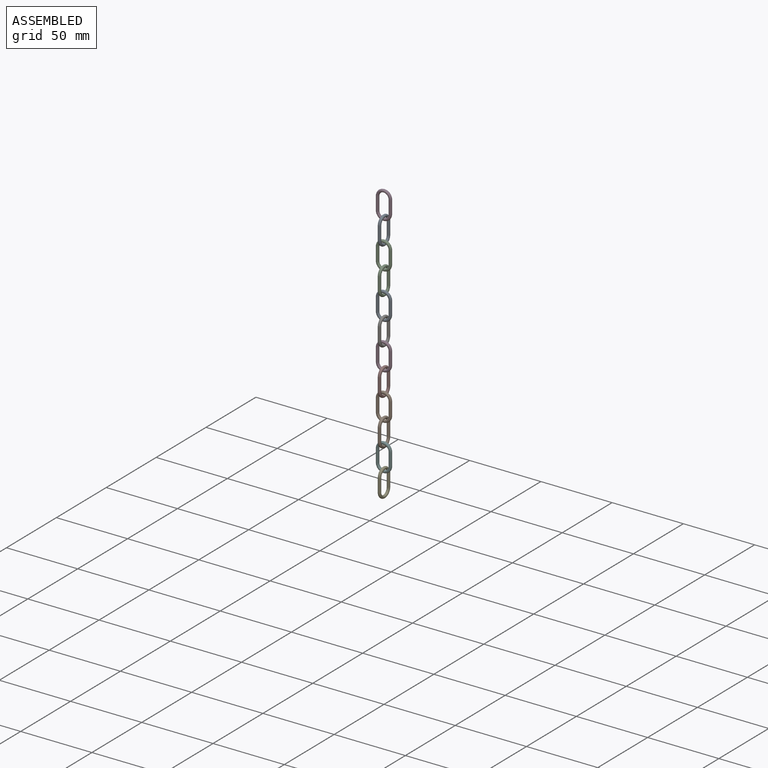
[diagram: assembled view]
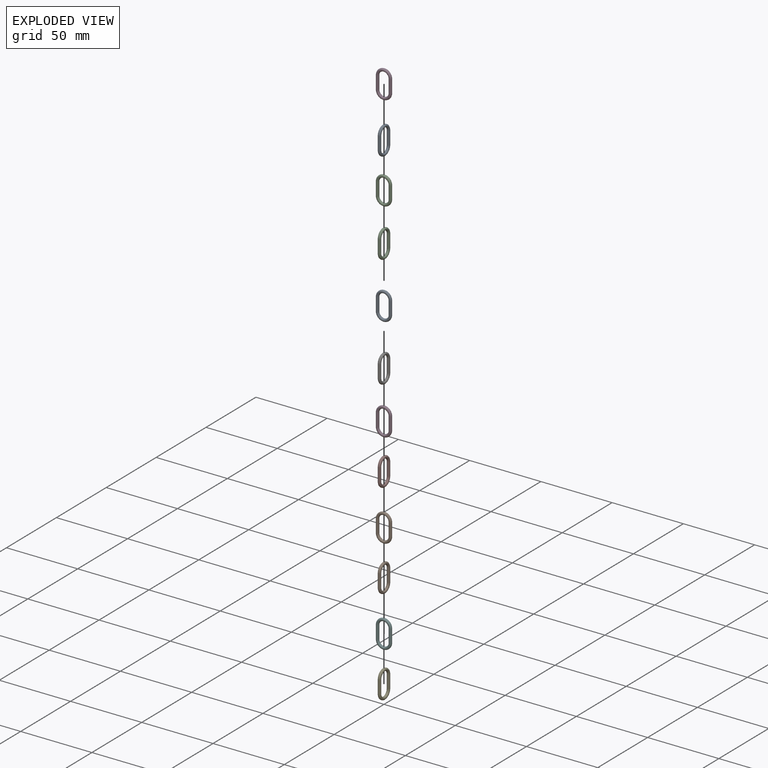
[diagram: exploded view]
GUIDED TOUR — MATED ASSEMBLY (Onshape document 476720cc1370ffd66f110e9f, AutoMate assembly 476720cc1370ffd66f110e9f_54ce135126f6ec38946d970a_9d48fa2bc63055fd950f331f_default)

This assembly has 12 components, labeled P0..P11 below (a component is one placed occurrence of a part; the same part can appear more than once), held together by 11 mates. A mate is a constraint between two components; its type names the relative motion it leaves free:
  BALL — leaves all rotation about the listed point free (a ball joint),
  FASTENED — locks the two components together rigidly (no relative motion).
Axis/direction vectors are unit vectors and 'through' points are millimeter coordinates, both in the assembly's world frame.

MATES
  1. FASTENED "Fastened 7": P0 <-> P10, direction (0.000, 0.000, -1.000) through (0.00, 0.00, -17.05) mm
  2. FASTENED "Fastened 9": P8 <-> P2, direction (0.000, 0.000, -1.000) through (0.00, 0.00, 14.95) mm
  3. FASTENED "Fastened 1": P5 <-> P1, direction (0.000, 0.000, -1.000) through (0.00, 0.00, -113.05) mm
  4. FASTENED "Fastened 2": P1 <-> P9, direction (0.000, 0.000, -1.000) through (0.00, 0.00, -97.05) mm
  5. FASTENED "Fastened 6": P0 <-> P6, direction (0.000, 0.000, -1.000) through (0.00, 0.00, -33.05) mm
  6. BALL "Ball 10": P4 <-> P5, direction (0.000, 0.000, -1.000) through (0.00, 0.00, -129.05) mm
  7. FASTENED "Fastened 3": P9 <-> P7, direction (0.000, 0.000, -1.000) through (0.00, 0.00, -81.05) mm
  8. FASTENED "Fastened 5": P11 <-> P6, direction (0.000, 0.000, -1.000) through (0.00, 0.00, -49.05) mm
  9. FASTENED "Fastened 4": P7 <-> P11, direction (0.000, 0.000, -1.000) through (0.00, 0.00, -65.05) mm
  10. FASTENED "Fastened 10": P2 <-> P10, direction (0.000, 0.000, -1.000) through (0.00, 0.00, -1.05) mm
  11. FASTENED "Fastened 8": P3 <-> P8, direction (0.000, 0.000, -1.000) through (0.00, 0.00, 30.95) mm

ASSEMBLY ORDER
  1. P0 — the base component [order heuristic]
  2. P6 [order heuristic]
  3. P10 [order heuristic]
  4. P2 [order heuristic]
  5. P11 [order heuristic]
  6. P7 [order heuristic]
  7. P8 [order heuristic]
  8. P3 [order heuristic]
  9. P9 [order heuristic]
  10. P1 [order heuristic]
  11. P5 [order heuristic]
  12. P4 [order heuristic]
Order-tag legend:
  [order heuristic] — this assembly is geometrically interlocked (no collision-free removal order exists), so components are listed in mate-graph order; insertion feasibility is not verified.

Of the 12 components, 12 carry the full construction recipe — the FeatureScript program that regenerates the part's solid from scratch; the rest are supplied as boundary geometry only.
Each toured component is shown spotlighted twice — in the assembled view, then in the exploded view, where a leader line traces a displaced component back to its assembled socket (saturated green if recipe-attached, orange if geometry-only; every other component desaturated gray) — followed by its recipe or geometry summary and the mates that hold it.
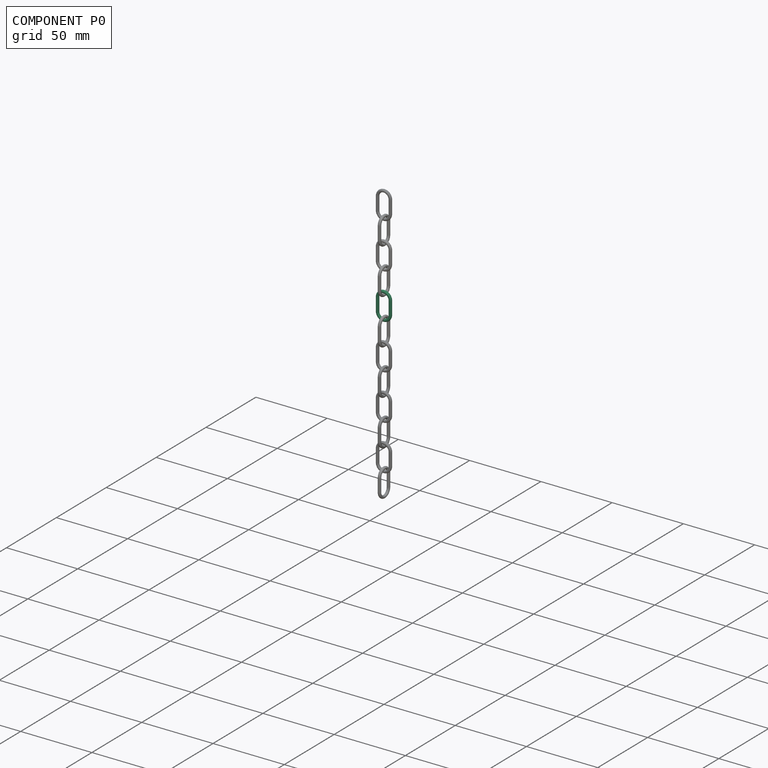
[diagram: component P0 — assembled]
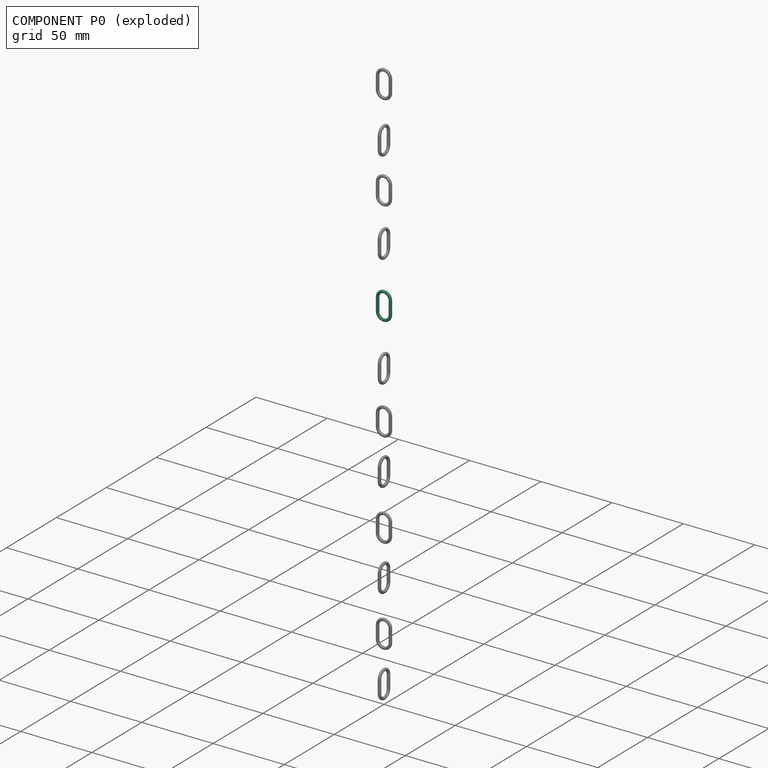
[diagram: component P0 — exploded]
COMPONENT P0 — recipe-attached (CADFS 00636410, mesh-verified: the recipe's output STEP matches this component's geometry to below the mesh-comparison resolution (tessellation chordal tolerance ~0.0344 mm)).
Held by: FASTENED mate "Fastened 7" to P10; FASTENED mate "Fastened 6" to P6.
Construction recipe (FeatureScript — the CAD program that rebuilds this solid; sketch coordinates are in the units given by the * unit suffixes, e.g. mm):

FeatureScript 1511;
import(path : "onshape/std/geometry.fs", version : "1511.0");
import(path : "onshape/std/common.fs", version : "1511.0");
const mm = millimeter;
const VERTEX = EntityType.VERTEX;
const EDGE = EntityType.EDGE;
const FACE = EntityType.FACE;
const BODY = EntityType.BODY;
function v(x, y){return vector(x, y);}
function OD(order){return orderDisambiguation(order);}
function OSD(set){return originalSetDisambiguation(set);}
function TD(topology){return topologyDisambiguation(topology);}
function TDD(query){return trueDependencyDisambiguation(query);}
function sQuery(a, b, c) {return sketchEntityQuery(a, b, c);}

annotation { "Feature Type Name" : "Feature", "Feature Type Description" : "" }
export const myFeature = defineFeature(function(context is Context, id is Id, definition is map)
    precondition{}
    {
        {
            var Q0;
            Q0=qCreatedBy(makeId("Right.planeOp"),FACE);
            var sketch = newSketch(context, id + "F0", { "sketchPlane" : qUnion([Q0])});
            skArc(sketch, "E0", {"start": v(4.5, 9) * mm, "mid": v(0, 13.5) * mm, "end": v(-4.5, 9) * mm});
            skArc(sketch, "E1", {"start": v(-4.5, 0) * mm, "mid": v(0, -4.5) * mm, "end": v(4.5, 0) * mm});
            skLineSegment(sketch, "E2", {"start": v(-4.5, 0) * mm, "end": v(-4.5, 9) * mm});
            skLineSegment(sketch, "E3", {"start": v(4.5, 9) * mm, "end": v(4.5, 0) * mm});
            skLineSegment(sketch, "E4", {"start": v(0, -4.5) * mm, "end": v(0, 13.5) * mm, "construction": true});
            skSolve(sketch);
        }
        {
            var Q0;
            Q0=qCreatedBy(makeId("Top.planeOp"),FACE);
            var sketch = newSketch(context, id + "F1", { "sketchPlane" : qUnion([Q0])});
            skPoint(sketch, "E5.0", {"position": v(0, 4.5) * mm});
            skCircle(sketch, "E6", {"center": v(0, 4.5) * mm, "radius": 1 * mm});
            skSolve(sketch);
        }
        {
            var Q0;
            Q0=makeQuery(id+"F1.imprint","IMPRINT",FACE,{"disambiguationData":[TD([[makeQuery(id+"F1.imprint","IMPRINT",EDGE,{"derivedFrom":sQuery(id+"F1.wireOp",EDGE,"E6")}),1.0]])]});
            var Q1;
            Q1=sQuery(id+"F0.wireOp",EDGE,"E1");
            var Q2;
            Q2=sQuery(id+"F0.wireOp",EDGE,"E2");
            var Q3;
            Q3=sQuery(id+"F0.wireOp",EDGE,"E0");
            var Q4;
            Q4=sQuery(id+"F0.wireOp",EDGE,"E3");
            sweep(context, id + "F2", {"profiles" : qUnion([Q0]), "path" : qUnion([Q1, Q2, Q3, Q4])});
        }
    });
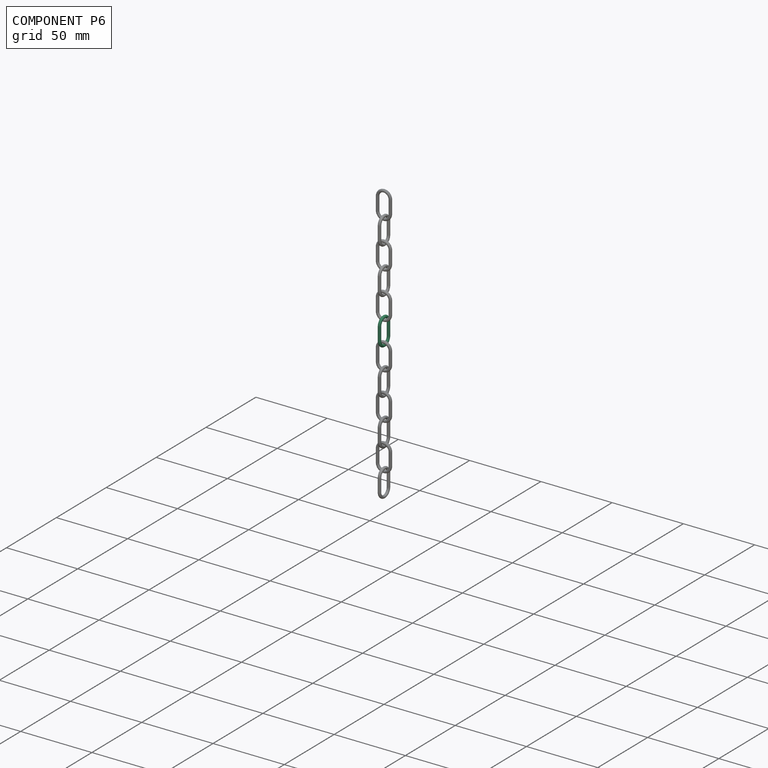
[diagram: component P6 — assembled]
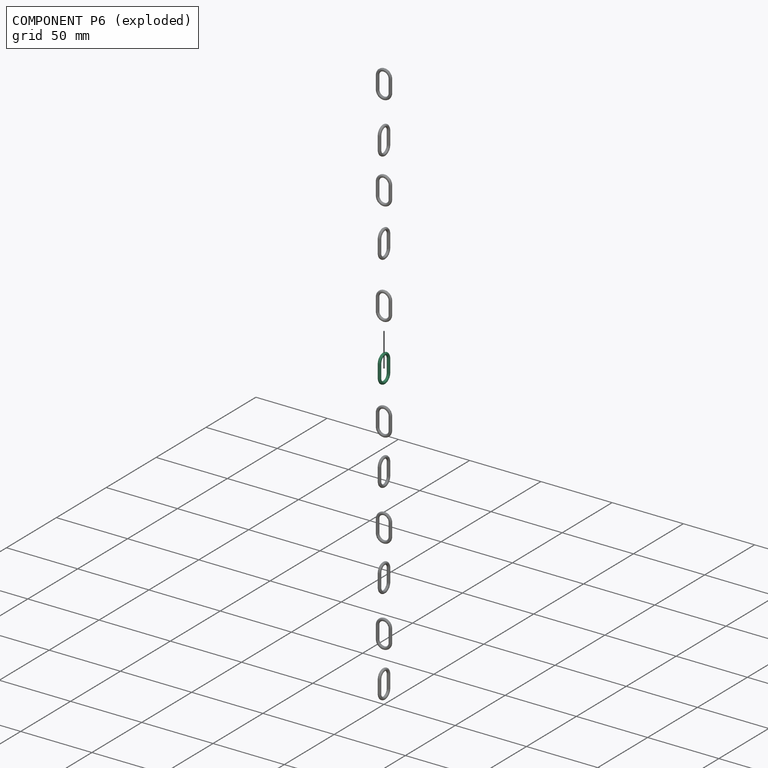
[diagram: component P6 — exploded]
COMPONENT P6 — same part as P0 (CADFS 00636410); its construction recipe is shown at P0.
Held by: FASTENED mate "Fastened 6" to P0; FASTENED mate "Fastened 5" to P11.
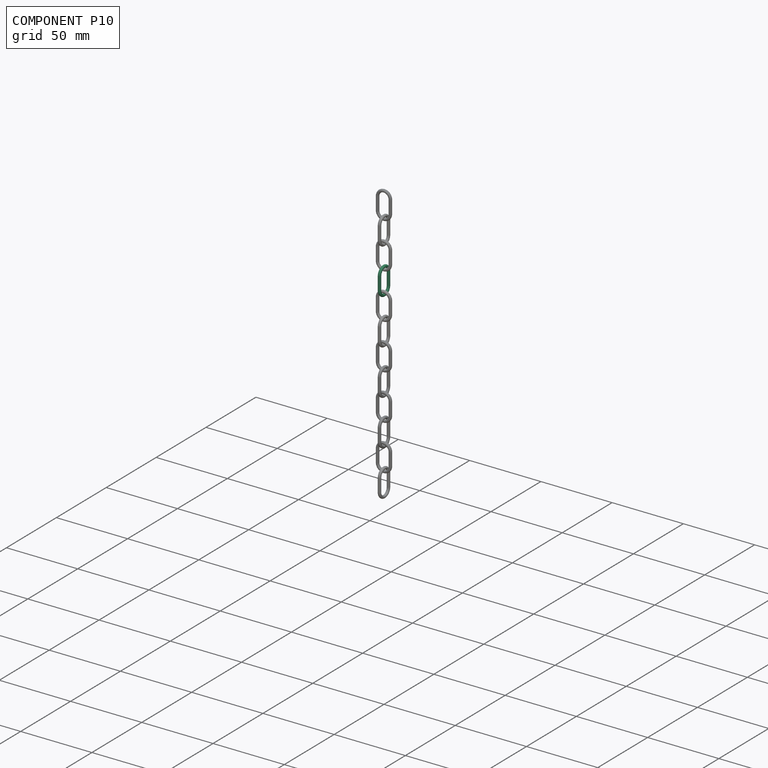
[diagram: component P10 — assembled]
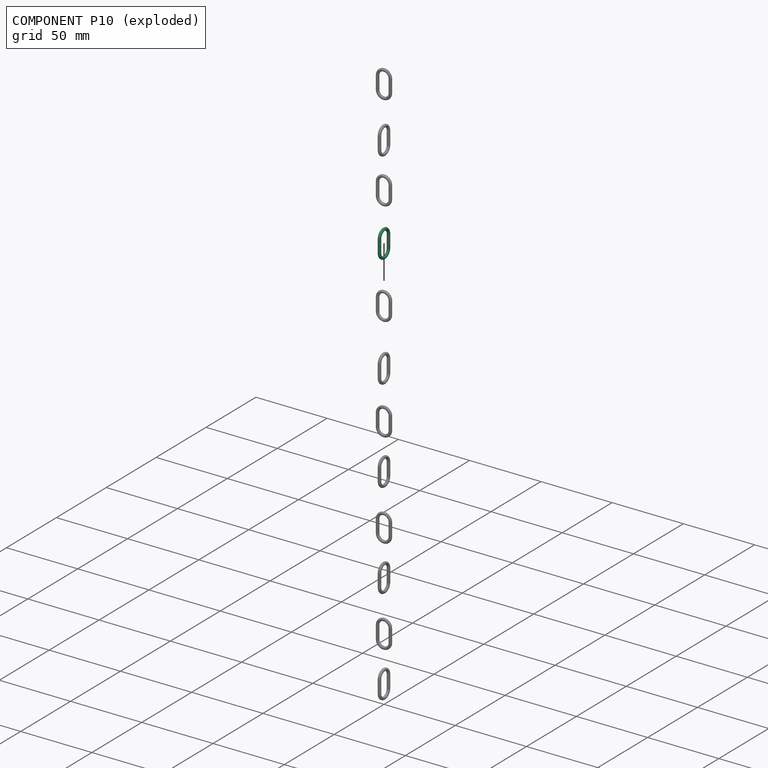
[diagram: component P10 — exploded]
COMPONENT P10 — same part as P0 (CADFS 00636410); its construction recipe is shown at P0.
Held by: FASTENED mate "Fastened 7" to P0; FASTENED mate "Fastened 10" to P2.
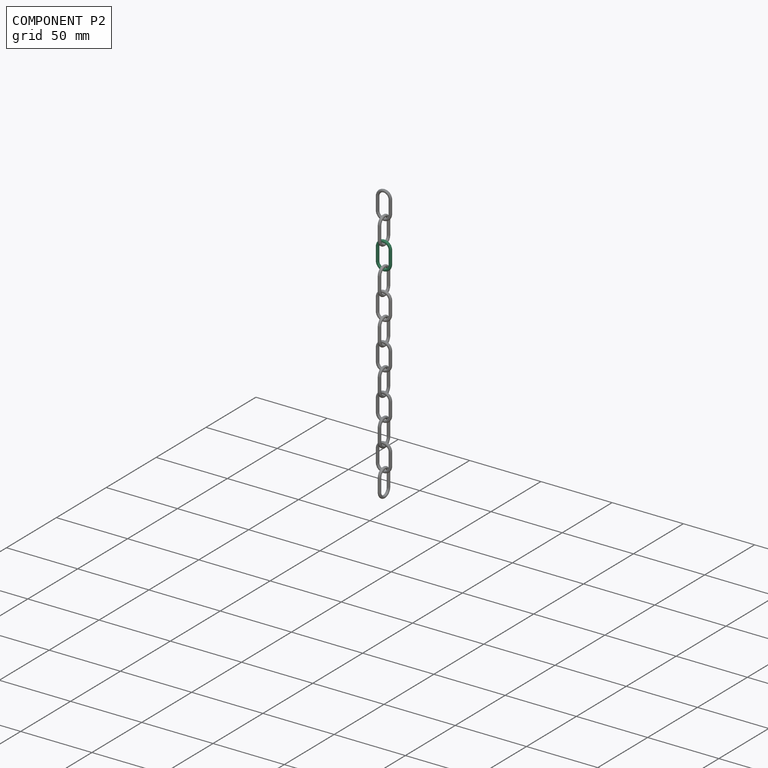
[diagram: component P2 — assembled]
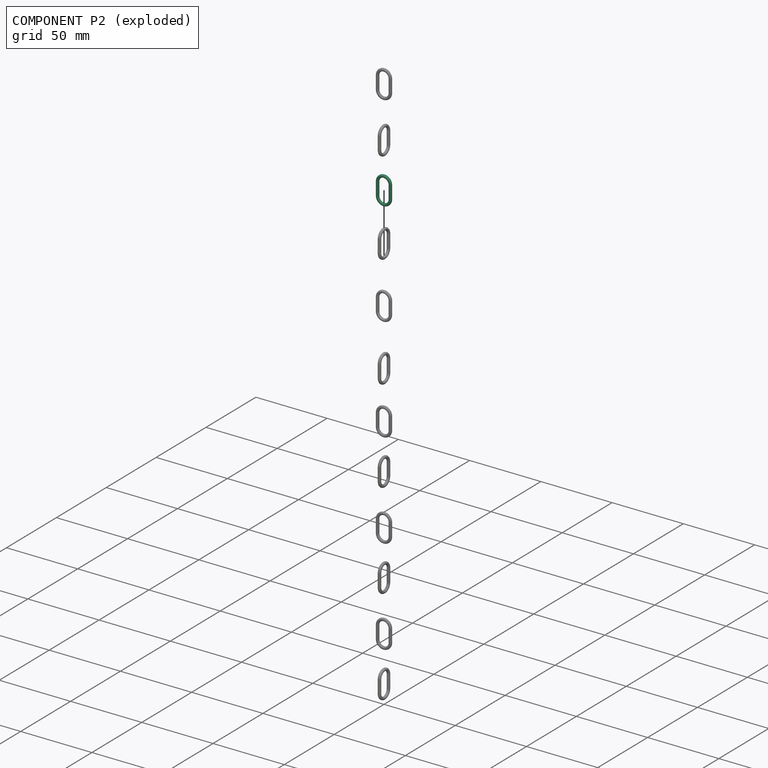
[diagram: component P2 — exploded]
COMPONENT P2 — same part as P0 (CADFS 00636410); its construction recipe is shown at P0.
Held by: FASTENED mate "Fastened 9" to P8; FASTENED mate "Fastened 10" to P10.
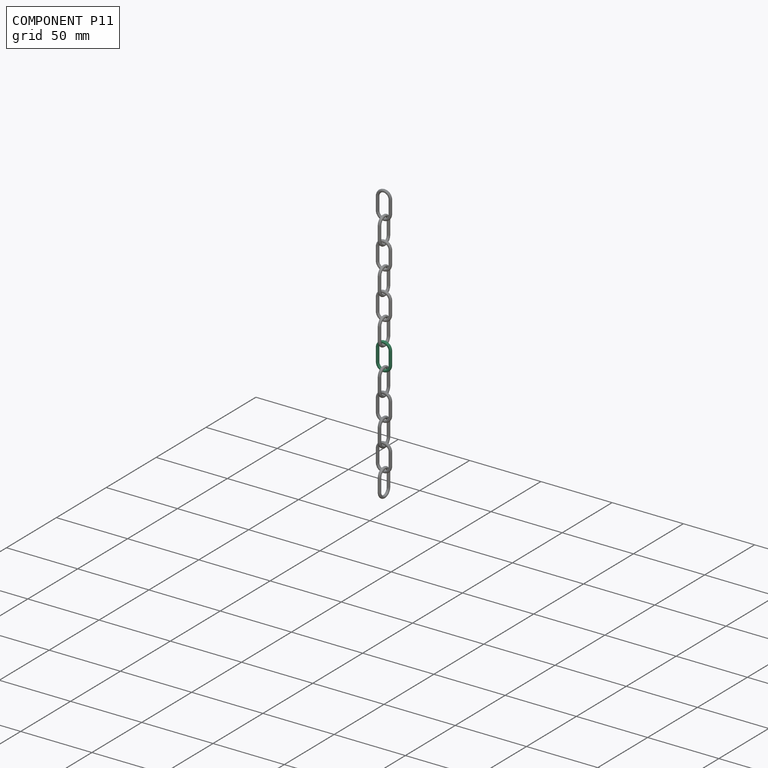
[diagram: component P11 — assembled]
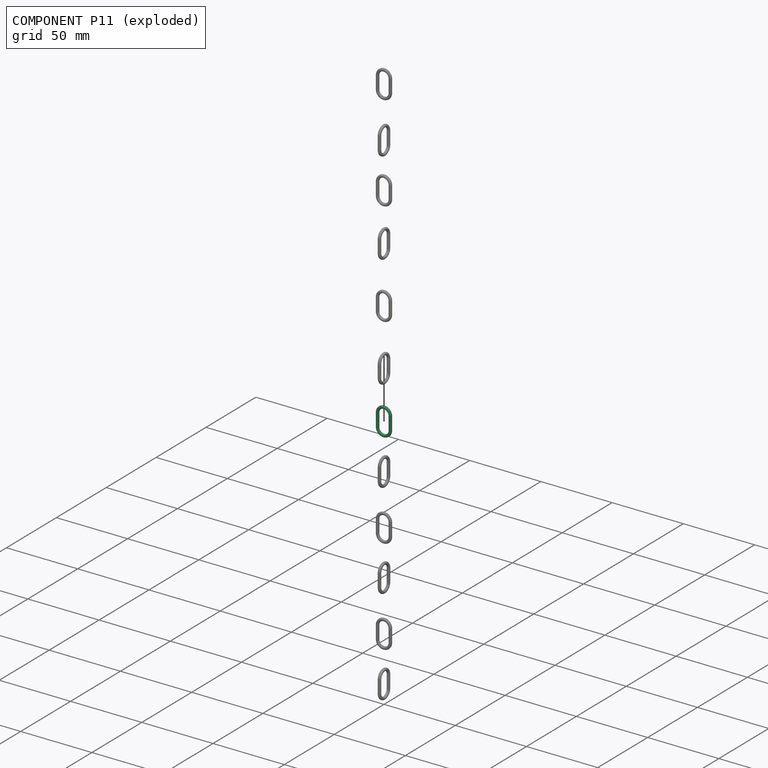
[diagram: component P11 — exploded]
COMPONENT P11 — same part as P0 (CADFS 00636410); its construction recipe is shown at P0.
Held by: FASTENED mate "Fastened 5" to P6; FASTENED mate "Fastened 4" to P7.
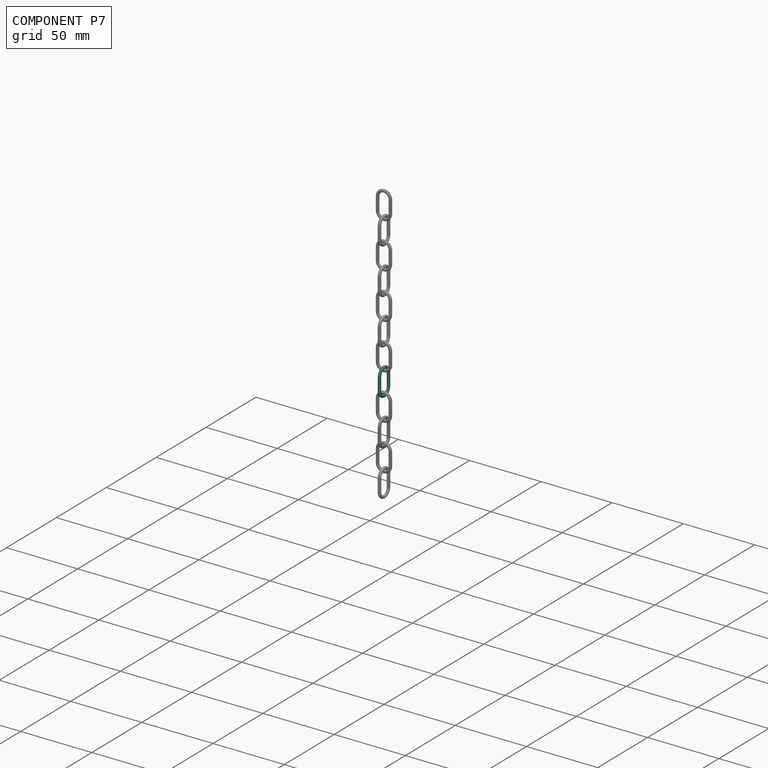
[diagram: component P7 — assembled]
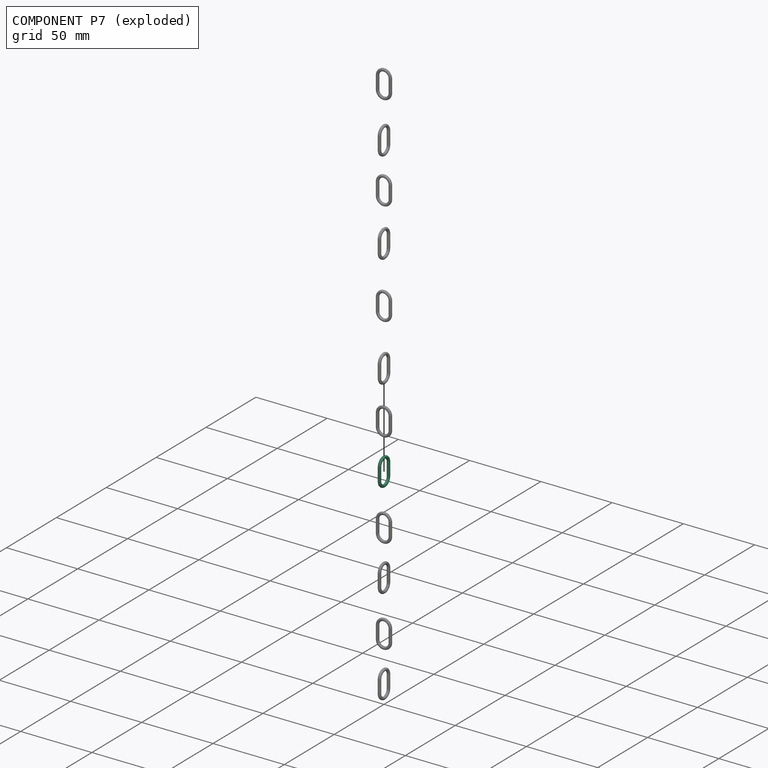
[diagram: component P7 — exploded]
COMPONENT P7 — same part as P0 (CADFS 00636410); its construction recipe is shown at P0.
Held by: FASTENED mate "Fastened 3" to P9; FASTENED mate "Fastened 4" to P11.
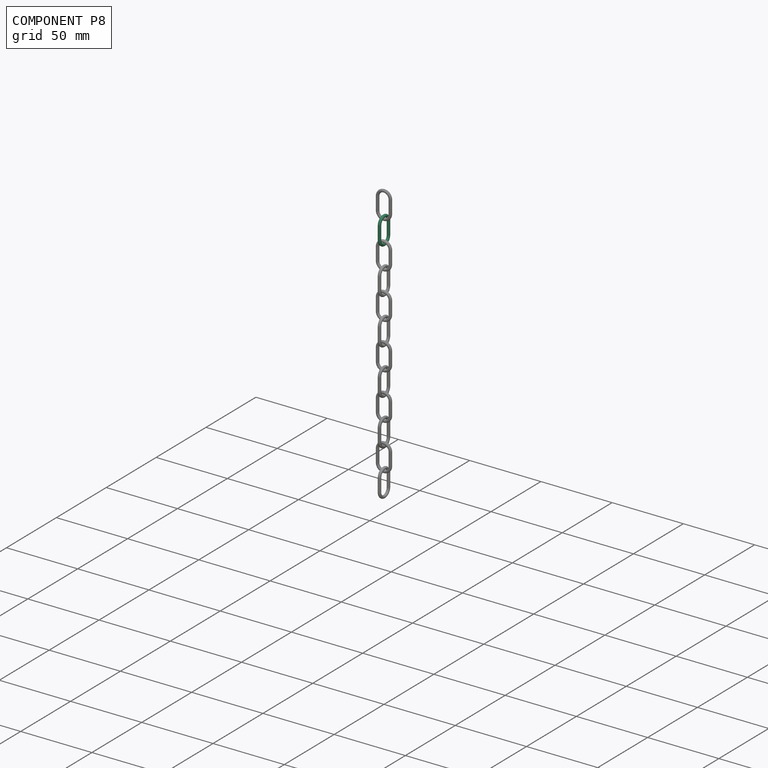
[diagram: component P8 — assembled]
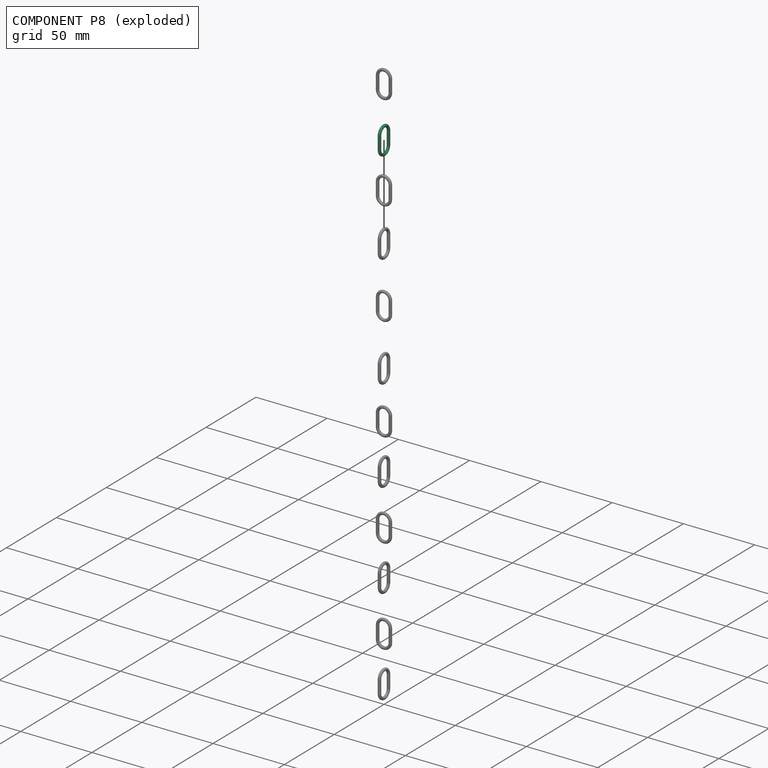
[diagram: component P8 — exploded]
COMPONENT P8 — same part as P0 (CADFS 00636410); its construction recipe is shown at P0.
Held by: FASTENED mate "Fastened 9" to P2; FASTENED mate "Fastened 8" to P3.
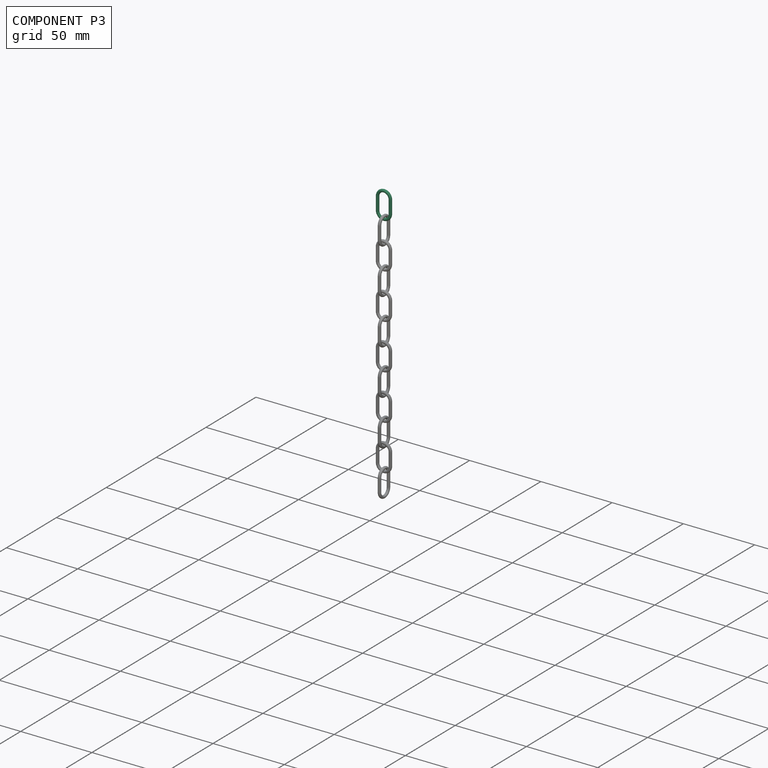
[diagram: component P3 — assembled]
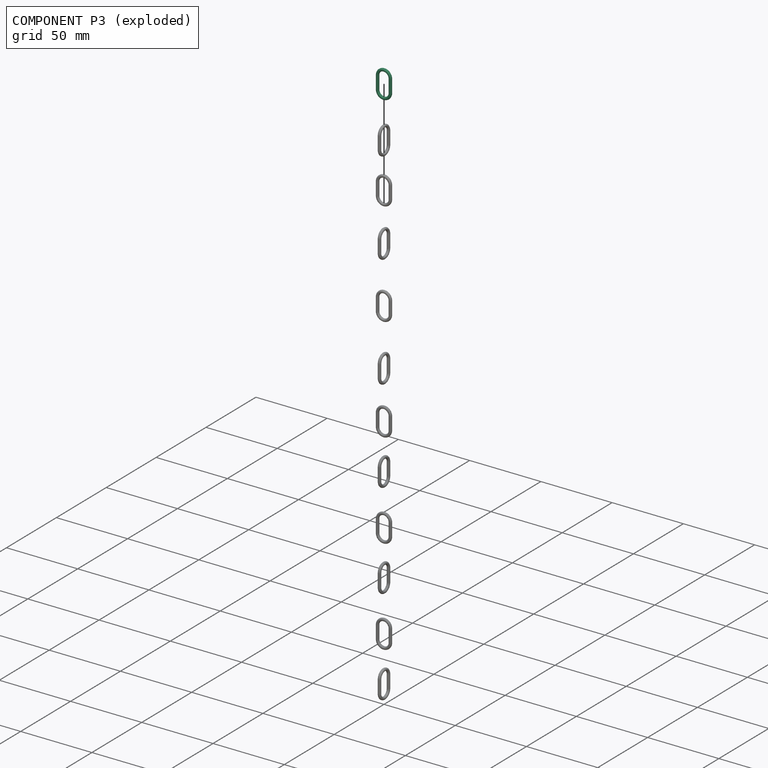
[diagram: component P3 — exploded]
COMPONENT P3 — same part as P0 (CADFS 00636410); its construction recipe is shown at P0.
Held by: FASTENED mate "Fastened 8" to P8.
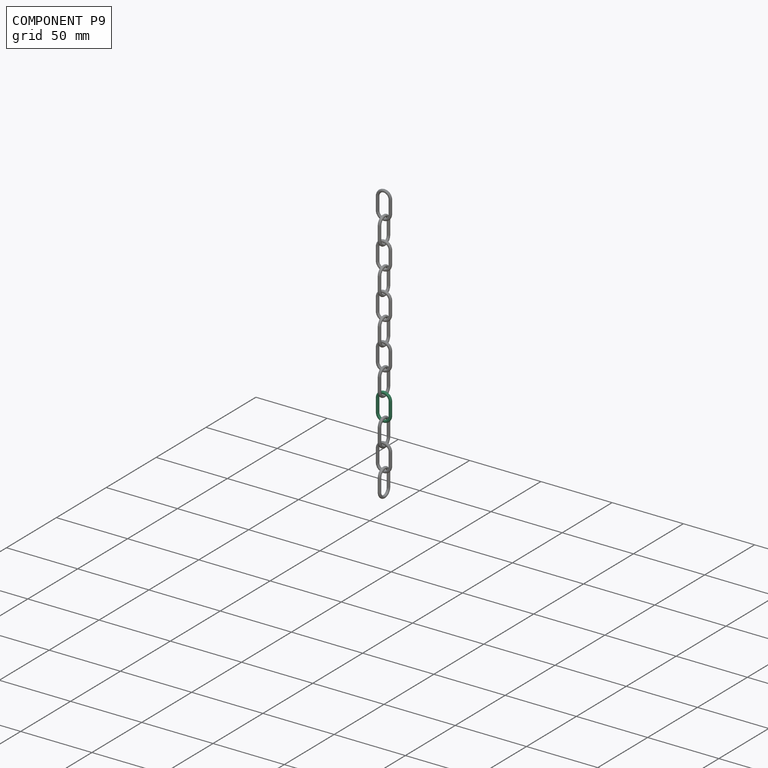
[diagram: component P9 — assembled]
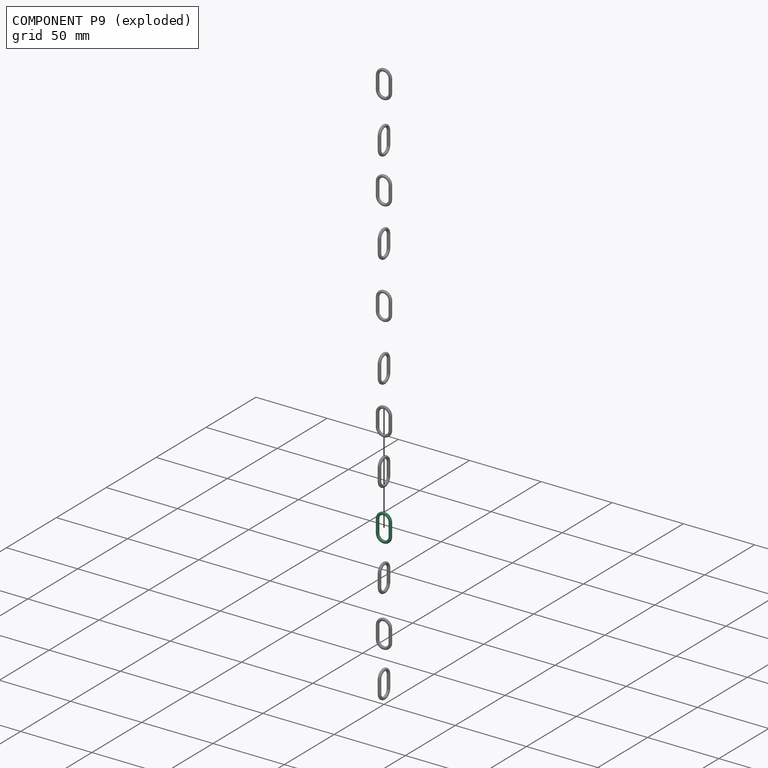
[diagram: component P9 — exploded]
COMPONENT P9 — same part as P0 (CADFS 00636410); its construction recipe is shown at P0.
Held by: FASTENED mate "Fastened 2" to P1; FASTENED mate "Fastened 3" to P7.
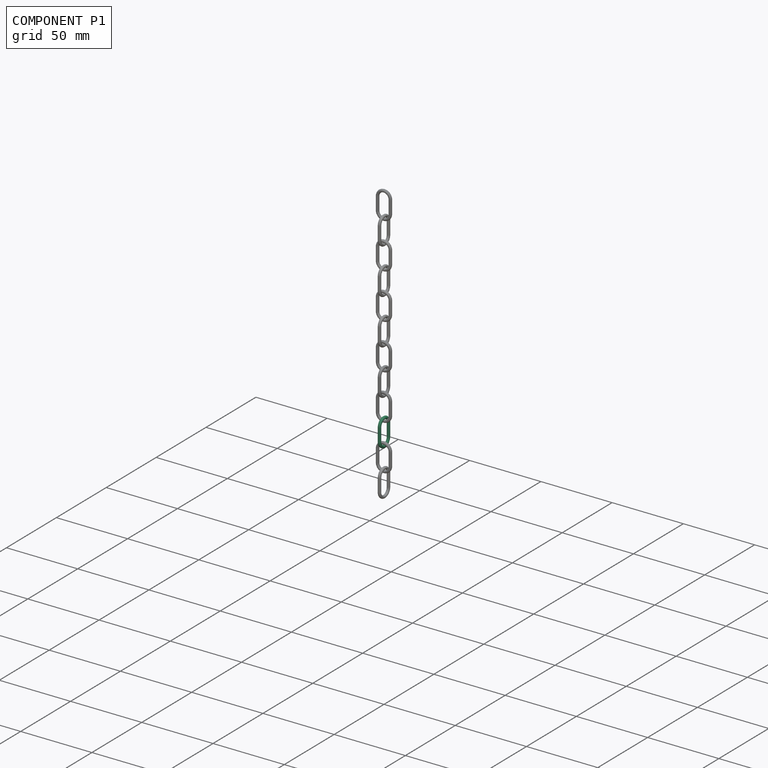
[diagram: component P1 — assembled]
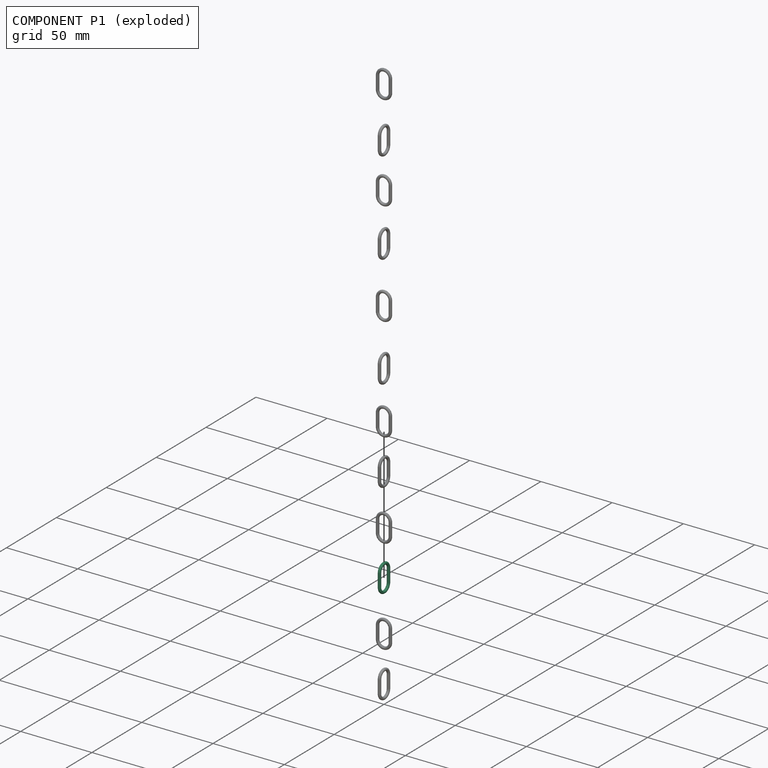
[diagram: component P1 — exploded]
COMPONENT P1 — same part as P0 (CADFS 00636410); its construction recipe is shown at P0.
Held by: FASTENED mate "Fastened 1" to P5; FASTENED mate "Fastened 2" to P9.
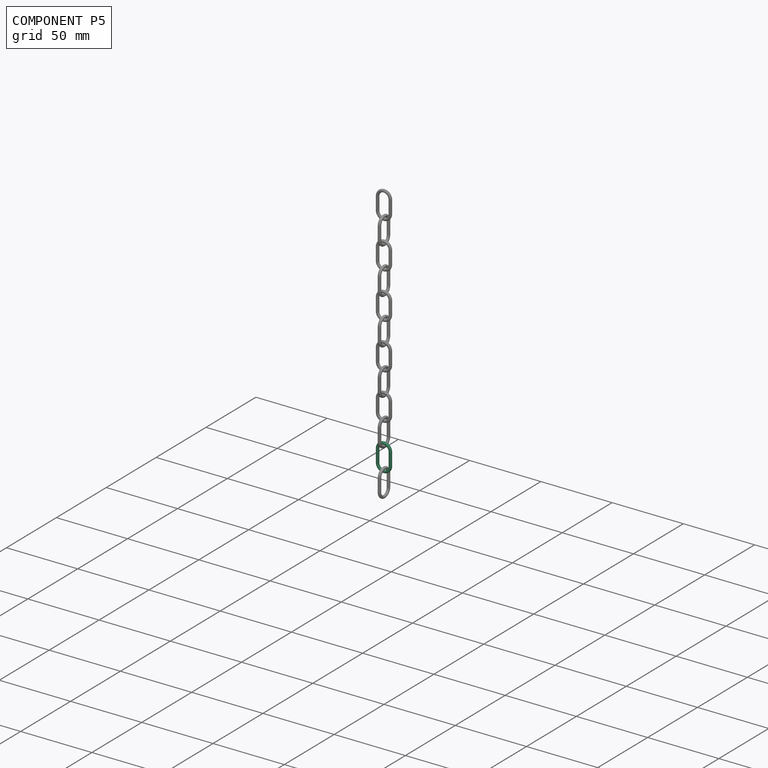
[diagram: component P5 — assembled]
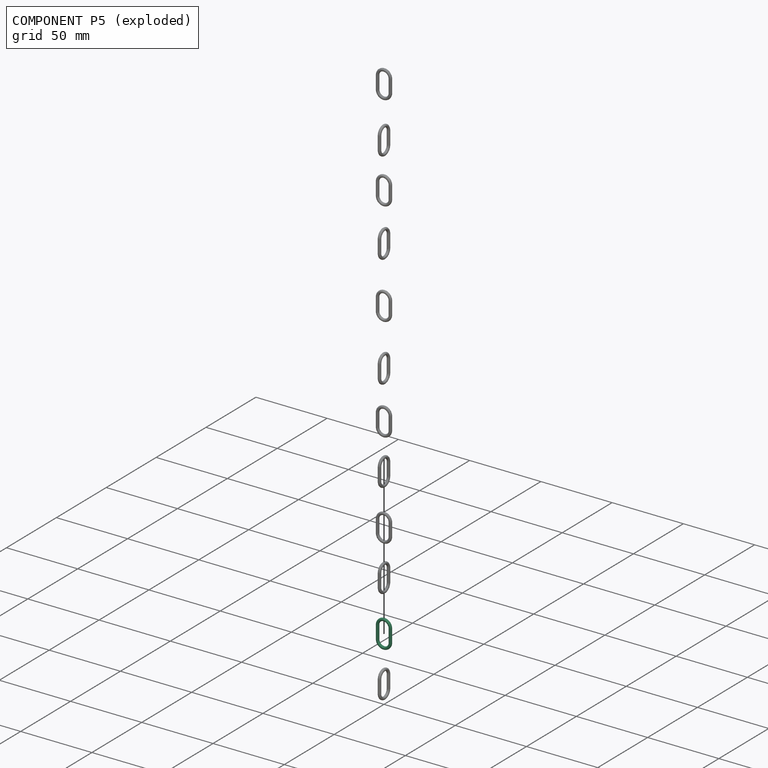
[diagram: component P5 — exploded]
COMPONENT P5 — same part as P0 (CADFS 00636410); its construction recipe is shown at P0.
Held by: FASTENED mate "Fastened 1" to P1; BALL mate "Ball 10" to P4.
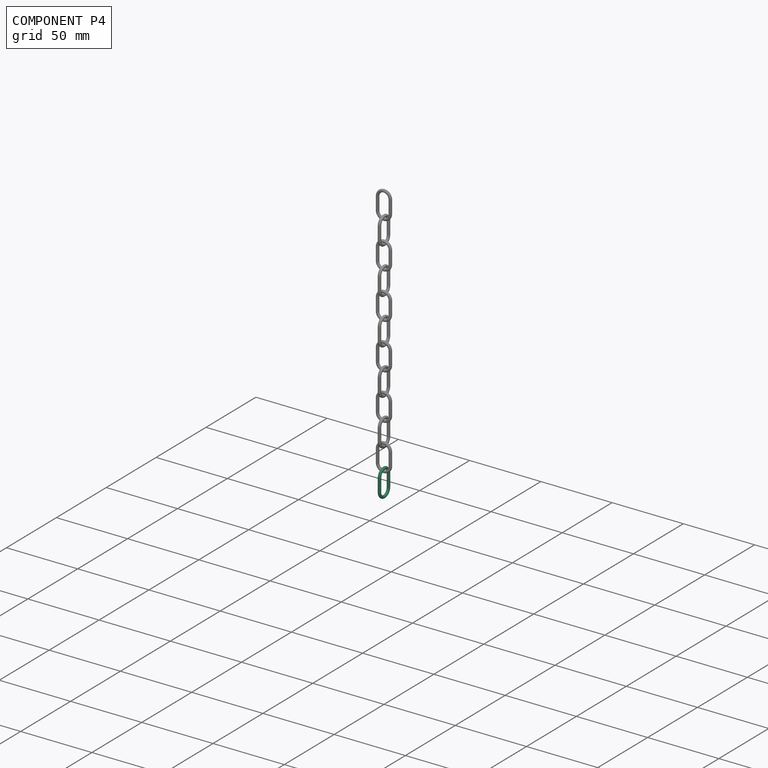
[diagram: component P4 — assembled]
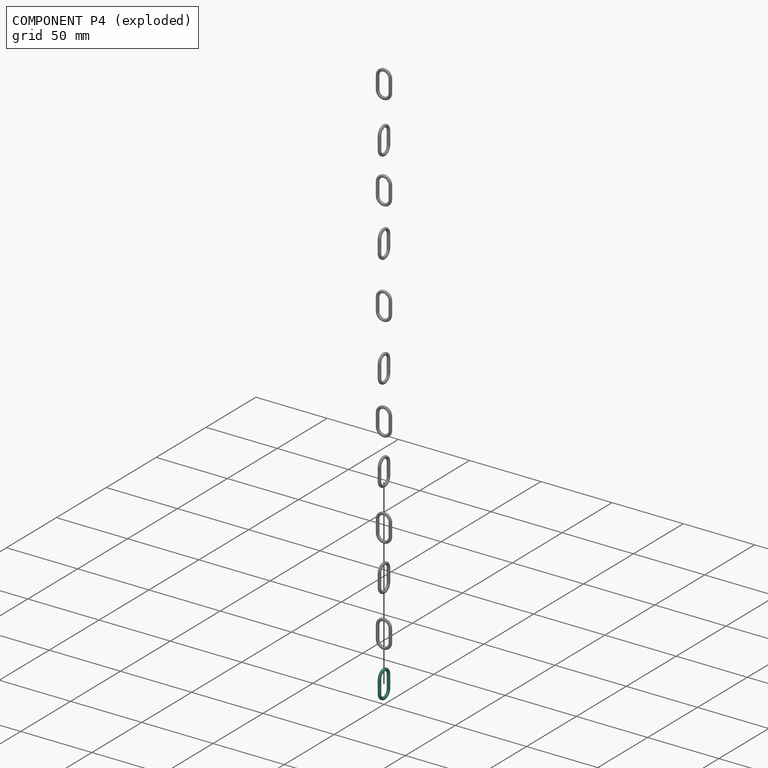
[diagram: component P4 — exploded]
COMPONENT P4 — same part as P0 (CADFS 00636410); its construction recipe is shown at P0.
Held by: BALL mate "Ball 10" to P5.
PROVENANCE & LICENSES
Assembly (occurrences, transforms, mates, per-part STEP geometry): AutoMate dataset, Zenodo record 7776208, CC0.
Construction recipes: CADFS (HuggingFace VladPyatov/CADFS, CC-BY-4.0, layered over the ABC dataset), FeatureScript reconstruction programs keyed by ABC model id.
Join: ABC meta listings map ABC model id -> Onshape documentId; within a shared document, parts are matched by geometric signature (bounding-box dims + volume at 0.1% relative tolerance, exact B-rep face/solid counts).
Verification: 12 of this assembly's 12 components carry a recipe attachment, and every attachment is mesh-verified: the CADFS STEP and the AutoMate member STEP were compared as meshes in their shared local frame (symmetric sampled-point-to-mesh distance); worst across the 12 attachments: below the mesh-comparison resolution (tessellation chordal tolerance ~0.0344 mm) on a 23 mm part.
Renders: orthographic iso camera (az 35 / el 25); the floor grid conveys scale (grid pitch printed in each image; no ruler). In the exploded view each component is displaced by its stored offset vector: the offsets alone carry the explosion direction (mate normal/axis signs are not orientation cues and do not encode it), and separation distances are assigned per mate-chain, not proportionally to assembly-order depth.
